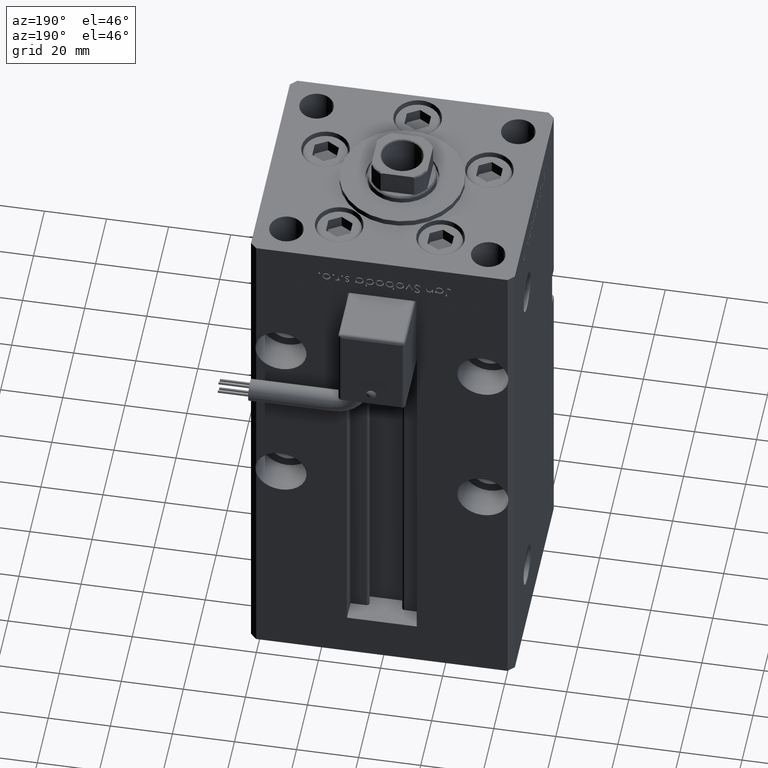
[diagram: clean part render]
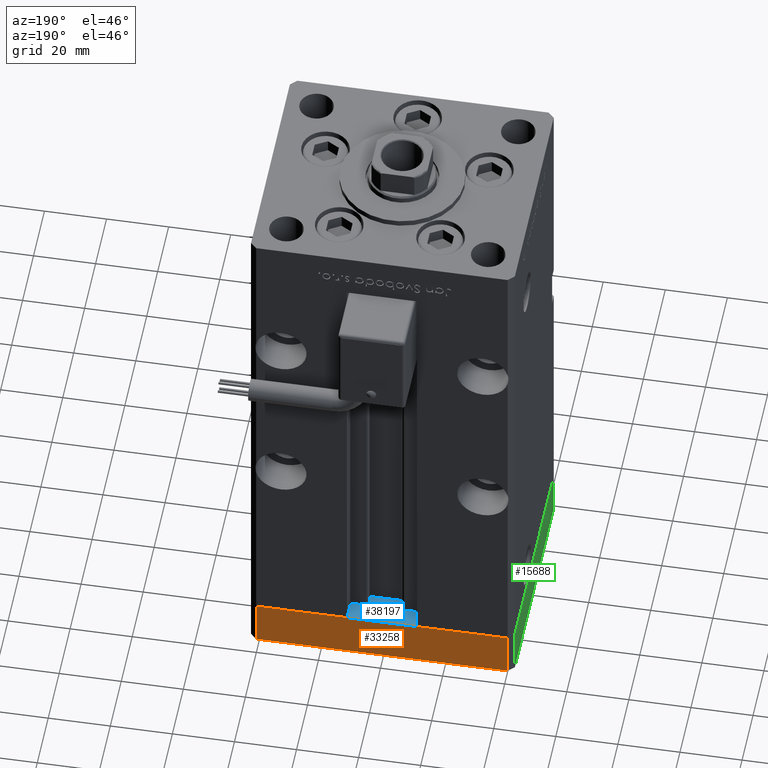
[diagram: same view with three faces highlighted in distinct colors, each labeled with its STEP entity id]
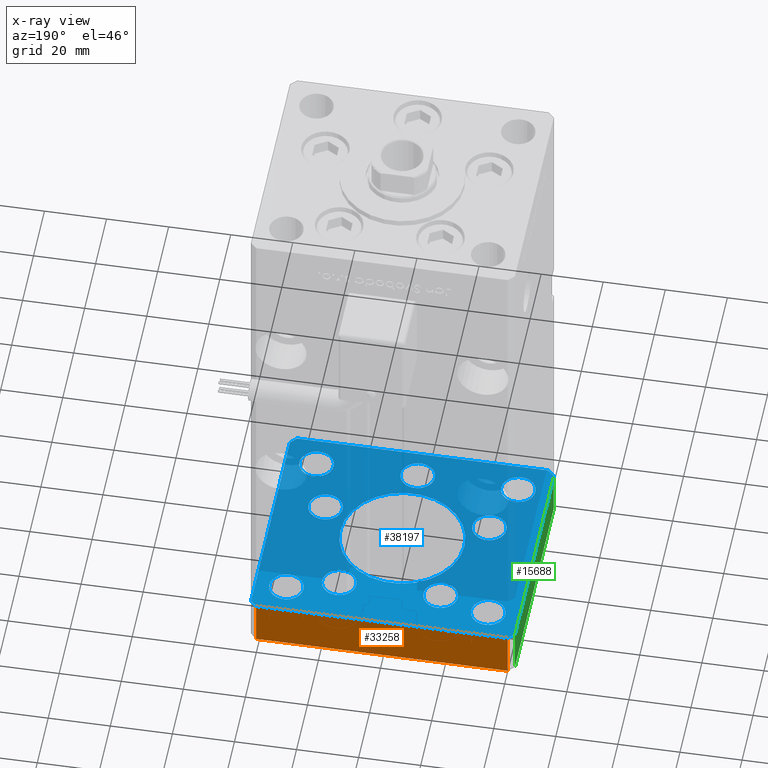
[diagram: x-ray of the same camera — body ghosted, the three highlighted faces saturated]
A machine part, auxiliary view with three faces highlighted in distinct colors.
The next image is the same camera in x-ray (body ghosted, the three faces saturated) — at least one of them is partly hidden behind the body in this view.
Their STEP definitions:

[orange] entity #33258 — the highlighted planar face has unit normal (-0, 1, 0).
#1394 = ORIENTED_EDGE ( 'NONE', *, *, #22505, .F. ) ;
#1836 = VERTEX_POINT ( 'NONE', #6038 ) ;
#3557 = DIRECTION ( 'NONE',  ( -1.000000000000000000, -3.426614273534436165E-16, 0.000000000000000000 ) ) ;
#6038 = CARTESIAN_POINT ( 'NONE',  ( 40.49999999999991473, 37.50000000000000711, 0.000000000000000000 ) ) ;
#6355 = CARTESIAN_POINT ( 'NONE',  ( 40.49999999999991473, 37.50000000000000711, -15.00000000000000000 ) ) ;
#6370 = DIRECTION ( 'NONE',  ( 0.000000000000000000, 0.000000000000000000, 1.000000000000000000 ) ) ;
#6649 = AXIS2_PLACEMENT_3D ( 'NONE', #25977, #29947, #30217 ) ;
#9524 = PLANE ( 'NONE',  #6649 ) ;
#12598 = VECTOR ( 'NONE', #51268, 1000.000000000000000 ) ;
#16197 = EDGE_CURVE ( 'NONE', #1836, #30914, #30238, .T. ) ;
#18028 = CARTESIAN_POINT ( 'NONE',  ( -40.50000000000000711, 37.49999999999997868, 0.000000000000000000 ) ) ;
#20082 = EDGE_CURVE ( 'NONE', #47182, #28397, #21156, .T. ) ;
#21156 = LINE ( 'NONE', #42973, #48891 ) ;
#22505 = EDGE_CURVE ( 'NONE', #47182, #1836, #34317, .T. ) ;
#23784 = VECTOR ( 'NONE', #6370, 1000.000000000000000 ) ;
#25454 = CARTESIAN_POINT ( 'NONE',  ( 40.49999999999991473, 37.50000000000000711, 0.000000000000000000 ) ) ;
#25977 = CARTESIAN_POINT ( 'NONE',  ( 40.49999999999991473, 37.50000000000000711, -15.00000000000000000 ) ) ;
#26265 = FACE_OUTER_BOUND ( 'NONE', #36475, .T. ) ;
#27651 = LINE ( 'NONE', #50059, #23784 ) ;
#27879 = EDGE_CURVE ( 'NONE', #28397, #30914, #27651, .T. ) ;
#28397 = VERTEX_POINT ( 'NONE', #30851 ) ;
#29947 = DIRECTION ( 'NONE',  ( -3.426614273534436165E-16, 1.000000000000000000, 0.000000000000000000 ) ) ;
#30217 = DIRECTION ( 'NONE',  ( -1.000000000000000000, -3.426614273534436165E-16, 0.000000000000000000 ) ) ;
#30238 = LINE ( 'NONE', #25454, #12598 ) ;
#30851 = CARTESIAN_POINT ( 'NONE',  ( -40.50000000000000711, 37.49999999999997868, -15.00000000000000000 ) ) ;
#30914 = VERTEX_POINT ( 'NONE', #18028 ) ;
#31902 = ORIENTED_EDGE ( 'NONE', *, *, #16197, .F. ) ;
#33210 = DIRECTION ( 'NONE',  ( 0.000000000000000000, 0.000000000000000000, 1.000000000000000000 ) ) ;
#33258 = ADVANCED_FACE ( 'NONE', ( #26265 ), #9524, .T. ) ;
#34317 = LINE ( 'NONE', #42003, #55312 ) ;
#36475 = EDGE_LOOP ( 'NONE', ( #31902, #1394, #41601, #41045 ) ) ;
#41045 = ORIENTED_EDGE ( 'NONE', *, *, #27879, .T. ) ;
#41601 = ORIENTED_EDGE ( 'NONE', *, *, #20082, .T. ) ;
#42003 = CARTESIAN_POINT ( 'NONE',  ( 40.49999999999991473, 37.50000000000000711, -15.00000000000000000 ) ) ;
#42973 = CARTESIAN_POINT ( 'NONE',  ( 40.49999999999991473, 37.50000000000000711, -15.00000000000000000 ) ) ;
#47182 = VERTEX_POINT ( 'NONE', #6355 ) ;
#48891 = VECTOR ( 'NONE', #3557, 1000.000000000000000 ) ;
#50059 = CARTESIAN_POINT ( 'NONE',  ( -40.50000000000000711, 37.49999999999997868, -15.00000000000000000 ) ) ;
#51268 = DIRECTION ( 'NONE',  ( -1.000000000000000000, -3.426614273534436165E-16, 0.000000000000000000 ) ) ;
#55312 = VECTOR ( 'NONE', #33210, 1000.000000000000000 ) ;

[blue] entity #38197 — the highlighted planar face has unit normal (0, 0, -1).
#60 = AXIS2_PLACEMENT_3D ( 'NONE', #4339, #37583, #54910 ) ;
#112 = DIRECTION ( 'NONE',  ( -1.000000000000000000, 0.000000000000000000, 0.000000000000000000 ) ) ;
#149 = ORIENTED_EDGE ( 'NONE', *, *, #9148, .F. ) ;
#164 = EDGE_CURVE ( 'NONE', #27696, #49004, #3109, .T. ) ;
#196 = ORIENTED_EDGE ( 'NONE', *, *, #41589, .F. ) ;
#882 = VERTEX_POINT ( 'NONE', #9539 ) ;
#1050 = VERTEX_POINT ( 'NONE', #18762 ) ;
#1256 = DIRECTION ( 'NONE',  ( 0.000000000000000000, -0.000000000000000000, -1.000000000000000000 ) ) ;
#1540 = CARTESIAN_POINT ( 'NONE',  ( -42.50000000000000711, 35.49999999999997158, -15.00000000000000000 ) ) ;
#1642 = CARTESIAN_POINT ( 'NONE',  ( 26.39865316429776954, -9.333333333333330373, -15.00000000000000000 ) ) ;
#2721 = EDGE_LOOP ( 'NONE', ( #37969, #49754 ) ) ;
#3109 = CIRCLE ( 'NONE', #46580, 5.500000000000000000 ) ;
#3557 = DIRECTION ( 'NONE',  ( -1.000000000000000000, -3.426614273534436165E-16, 0.000000000000000000 ) ) ;
#3689 = ORIENTED_EDGE ( 'NONE', *, *, #43684, .F. ) ;
#4047 = DIRECTION ( 'NONE',  ( -1.172770800660376741E-15, 1.000000000000000000, 0.000000000000000000 ) ) ;
#4109 = CARTESIAN_POINT ( 'NONE',  ( -40.49999999999999289, -37.50000000000002132, -15.00000000000000000 ) ) ;
#4229 = VERTEX_POINT ( 'NONE', #6416 ) ;
#4339 = CARTESIAN_POINT ( 'NONE',  ( -32.50000000000000000, 27.50000000000000355, -15.00000000000000000 ) ) ;
#4548 = VECTOR ( 'NONE', #4047, 1000.000000000000000 ) ;
#4674 = ORIENTED_EDGE ( 'NONE', *, *, #35755, .F. ) ;
#4746 = EDGE_CURVE ( 'NONE', #54460, #32583, #27868, .T. ) ;
#5011 = VERTEX_POINT ( 'NONE', #27803 ) ;
#5125 = CARTESIAN_POINT ( 'NONE',  ( 3.429011037612589276E-15, -28.00000000000000000, -15.00000000000000000 ) ) ;
#5238 = DIRECTION ( 'NONE',  ( 1.000000000000000000, 0.000000000000000000, 0.000000000000000000 ) ) ;
#5378 = AXIS2_PLACEMENT_3D ( 'NONE', #20905, #55801, #33943 ) ;
#5452 = VERTEX_POINT ( 'NONE', #43563 ) ;
#5601 = EDGE_LOOP ( 'NONE', ( #11521, #16815 ) ) ;
#5673 = VECTOR ( 'NONE', #17049, 1000.000000000000000 ) ;
#6230 = AXIS2_PLACEMENT_3D ( 'NONE', #47128, #50552, #8257 ) ;
#6335 = AXIS2_PLACEMENT_3D ( 'NONE', #16336, #21398, #33890 ) ;
#6355 = CARTESIAN_POINT ( 'NONE',  ( 40.49999999999991473, 37.50000000000000711, -15.00000000000000000 ) ) ;
#6407 = CIRCLE ( 'NONE', #60, 5.499999999999998224 ) ;
#6416 = CARTESIAN_POINT ( 'NONE',  ( -27.00000000000000355, -27.49999999999999645, -15.00000000000000000 ) ) ;
#6747 = EDGE_CURVE ( 'NONE', #4229, #49756, #41263, .T. ) ;
#6846 = AXIS2_PLACEMENT_3D ( 'NONE', #29900, #17429, #25657 ) ;
#7209 = CIRCLE ( 'NONE', #5378, 5.499999999999998224 ) ;
#7225 = FACE_BOUND ( 'NONE', #51585, .T. ) ;
#7260 = DIRECTION ( 'NONE',  ( 9.773090005503140331E-17, -1.000000000000000000, 0.000000000000000000 ) ) ;
#7303 = AXIS2_PLACEMENT_3D ( 'NONE', #46949, #29916, #43226 ) ;
#7602 = ORIENTED_EDGE ( 'NONE', *, *, #34452, .F. ) ;
#7774 = DIRECTION ( 'NONE',  ( 1.000000000000000000, 0.000000000000000000, 0.000000000000000000 ) ) ;
#7805 = CIRCLE ( 'NONE', #28667, 20.00000000000000000 ) ;
#7967 = ORIENTED_EDGE ( 'NONE', *, *, #20082, .F. ) ;
#8050 = CARTESIAN_POINT ( 'NONE',  ( 0.000000000000000000, 0.000000000000000000, -15.00000000000000000 ) ) ;
#8257 = DIRECTION ( 'NONE',  ( 1.000000000000000000, 0.000000000000000000, 0.000000000000000000 ) ) ;
#8302 = ORIENTED_EDGE ( 'NONE', *, *, #6747, .F. ) ;
#8321 = CARTESIAN_POINT ( 'NONE',  ( 42.50000000000000711, -35.50000000000000000, -15.00000000000000000 ) ) ;
#8376 = AXIS2_PLACEMENT_3D ( 'NONE', #17742, #1256, #14054 ) ;
#8430 = ORIENTED_EDGE ( 'NONE', *, *, #53659, .F. ) ;
#8530 = CIRCLE ( 'NONE', #24874, 5.500000000000001776 ) ;
#8733 = AXIS2_PLACEMENT_3D ( 'NONE', #29462, #33997, #16715 ) ;
#8987 = CARTESIAN_POINT ( 'NONE',  ( 38.00000000000000000, -27.49999999999999645, -15.00000000000000000 ) ) ;
#9141 = ORIENTED_EDGE ( 'NONE', *, *, #27692, .F. ) ;
#9148 = EDGE_CURVE ( 'NONE', #5011, #1050, #7805, .T. ) ;
#9539 = CARTESIAN_POINT ( 'NONE',  ( -21.82291334290543361, 22.74999999999999645, -15.00000000000000000 ) ) ;
#9689 = DIRECTION ( 'NONE',  ( 1.000000000000000000, 0.000000000000000000, 0.000000000000000000 ) ) ;
#10211 = ORIENTED_EDGE ( 'NONE', *, *, #164, .F. ) ;
#10338 = VERTEX_POINT ( 'NONE', #52485 ) ;
#10567 = DIRECTION ( 'NONE',  ( 1.000000000000000000, 0.000000000000000000, 0.000000000000000000 ) ) ;
#10780 = EDGE_CURVE ( 'NONE', #38285, #54883, #52289, .T. ) ;
#10802 = CARTESIAN_POINT ( 'NONE',  ( 3.429011037612589276E-15, -28.00000000000000000, -15.00000000000000000 ) ) ;
#11407 = DIRECTION ( 'NONE',  ( 0.000000000000000000, -0.000000000000000000, -1.000000000000000000 ) ) ;
#11521 = ORIENTED_EDGE ( 'NONE', *, *, #50384, .F. ) ;
#12046 = FACE_BOUND ( 'NONE', #5601, .T. ) ;
#12048 = ORIENTED_EDGE ( 'NONE', *, *, #12336, .F. ) ;
#12336 = EDGE_CURVE ( 'NONE', #44099, #47182, #38458, .T. ) ;
#12638 = DIRECTION ( 'NONE',  ( -0.000000000000000000, -0.000000000000000000, -1.000000000000000000 ) ) ;
#12687 = CARTESIAN_POINT ( 'NONE',  ( -42.50000000000000000, -35.50000000000000711, -15.00000000000000000 ) ) ;
#12827 = EDGE_CURVE ( 'NONE', #47526, #882, #41459, .T. ) ;
#13007 = CIRCLE ( 'NONE', #34715, 5.499999999999998224 ) ;
#13646 = EDGE_CURVE ( 'NONE', #882, #47526, #17053, .T. ) ;
#14054 = DIRECTION ( 'NONE',  ( 1.000000000000000000, 0.000000000000000000, 0.000000000000000000 ) ) ;
#14121 = CARTESIAN_POINT ( 'NONE',  ( -10.82291334290543183, 22.74999999999999645, -15.00000000000000000 ) ) ;
#14662 = DIRECTION ( 'NONE',  ( 1.000000000000000000, 0.000000000000000000, 0.000000000000000000 ) ) ;
#14819 = EDGE_CURVE ( 'NONE', #31199, #26582, #15284, .T. ) ;
#14941 = EDGE_LOOP ( 'NONE', ( #8302, #28684 ) ) ;
#15110 = DIRECTION ( 'NONE',  ( 1.000000000000000000, 0.000000000000000000, 0.000000000000000000 ) ) ;
#15201 = AXIS2_PLACEMENT_3D ( 'NONE', #53534, #52401, #14662 ) ;
#15284 = CIRCLE ( 'NONE', #6230, 5.499999999999998224 ) ;
#15661 = CIRCLE ( 'NONE', #8376, 20.00000000000000000 ) ;
#15997 = ORIENTED_EDGE ( 'NONE', *, *, #33654, .T. ) ;
#16336 = CARTESIAN_POINT ( 'NONE',  ( -32.50000000000000000, 27.50000000000000355, -15.00000000000000000 ) ) ;
#16715 = DIRECTION ( 'NONE',  ( 1.000000000000000000, 0.000000000000000000, 0.000000000000000000 ) ) ;
#16815 = ORIENTED_EDGE ( 'NONE', *, *, #52439, .F. ) ;
#17049 = DIRECTION ( 'NONE',  ( 1.000000000000000000, 1.713307136767217096E-16, 0.000000000000000000 ) ) ;
#17053 = CIRCLE ( 'NONE', #46928, 5.500000000000000000 ) ;
#17307 = ORIENTED_EDGE ( 'NONE', *, *, #4746, .F. ) ;
#17429 = DIRECTION ( 'NONE',  ( -0.000000000000000000, -0.000000000000000000, -1.000000000000000000 ) ) ;
#17616 = VECTOR ( 'NONE', #24895, 1000.000000000000000 ) ;
#17742 = CARTESIAN_POINT ( 'NONE',  ( 0.000000000000000000, 0.000000000000000000, -15.00000000000000000 ) ) ;
#17763 = ORIENTED_EDGE ( 'NONE', *, *, #32949, .F. ) ;
#18235 = CARTESIAN_POINT ( 'NONE',  ( -40.49999999999999289, -37.50000000000002132, -15.00000000000000000 ) ) ;
#18462 = ORIENTED_EDGE ( 'NONE', *, *, #35550, .F. ) ;
#18762 = CARTESIAN_POINT ( 'NONE',  ( -20.00000000000000000, 2.449293598294706513E-15, -15.00000000000000000 ) ) ;
#19934 = CARTESIAN_POINT ( 'NONE',  ( 20.89865316429777309, -9.333333333333330373, -15.00000000000000000 ) ) ;
#20082 = EDGE_CURVE ( 'NONE', #47182, #28397, #21156, .T. ) ;
#20310 = VERTEX_POINT ( 'NONE', #1540 ) ;
#20556 = FACE_BOUND ( 'NONE', #33967, .T. ) ;
#20702 = DIRECTION ( 'NONE',  ( 0.000000000000000000, -0.000000000000000000, -1.000000000000000000 ) ) ;
#20759 = CARTESIAN_POINT ( 'NONE',  ( -40.50000000000000711, 37.49999999999997868, -15.00000000000000000 ) ) ;
#20830 = FACE_BOUND ( 'NONE', #40561, .T. ) ;
#20905 = CARTESIAN_POINT ( 'NONE',  ( 32.50000000000000000, -27.49999999999999645, -15.00000000000000000 ) ) ;
#20967 = EDGE_CURVE ( 'NONE', #42638, #29681, #28957, .T. ) ;
#21100 = AXIS2_PLACEMENT_3D ( 'NONE', #54821, #11407, #15110 ) ;
#21156 = LINE ( 'NONE', #42973, #48891 ) ;
#21398 = DIRECTION ( 'NONE',  ( 0.000000000000000000, 0.000000000000000000, 1.000000000000000000 ) ) ;
#21524 = CARTESIAN_POINT ( 'NONE',  ( 16.32291334290542295, 22.75000000000000000, -15.00000000000000000 ) ) ;
#21844 = LINE ( 'NONE', #18235, #5673 ) ;
#21848 = EDGE_CURVE ( 'NONE', #49756, #4229, #48962, .T. ) ;
#22338 = DIRECTION ( 'NONE',  ( 1.000000000000000000, 0.000000000000000000, 0.000000000000000000 ) ) ;
#22556 = ORIENTED_EDGE ( 'NONE', *, *, #10780, .T. ) ;
#22592 = CIRCLE ( 'NONE', #32549, 5.500000000000000000 ) ;
#22717 = DIRECTION ( 'NONE',  ( 0.000000000000000000, -0.000000000000000000, -1.000000000000000000 ) ) ;
#22910 = ORIENTED_EDGE ( 'NONE', *, *, #27941, .F. ) ;
#23041 = VECTOR ( 'NONE', #45731, 1000.000000000000114 ) ;
#23174 = DIRECTION ( 'NONE',  ( 0.000000000000000000, -0.000000000000000000, -1.000000000000000000 ) ) ;
#23442 = CARTESIAN_POINT ( 'NONE',  ( 27.00000000000000355, -27.49999999999999645, -15.00000000000000000 ) ) ;
#23452 = CARTESIAN_POINT ( 'NONE',  ( -16.32291334290543006, 22.74999999999999645, -15.00000000000000000 ) ) ;
#23627 = EDGE_CURVE ( 'NONE', #29681, #42638, #6407, .T. ) ;
#23838 = CARTESIAN_POINT ( 'NONE',  ( -38.00000000000000000, -27.49999999999999645, -15.00000000000000000 ) ) ;
#24603 = VERTEX_POINT ( 'NONE', #26783 ) ;
#24874 = AXIS2_PLACEMENT_3D ( 'NONE', #21524, #20702, #47341 ) ;
#24895 = DIRECTION ( 'NONE',  ( 0.7071067811865463515, -0.7071067811865487940, 0.000000000000000000 ) ) ;
#25300 = DIRECTION ( 'NONE',  ( -0.7071067811865463515, -0.7071067811865487940, 0.000000000000000000 ) ) ;
#25657 = DIRECTION ( 'NONE',  ( -1.000000000000000000, 0.000000000000000000, 0.000000000000000000 ) ) ;
#25771 = EDGE_LOOP ( 'NONE', ( #41575, #49224 ) ) ;
#26522 = DIRECTION ( 'NONE',  ( 0.000000000000000000, 0.000000000000000000, 1.000000000000000000 ) ) ;
#26582 = VERTEX_POINT ( 'NONE', #54027 ) ;
#26783 = CARTESIAN_POINT ( 'NONE',  ( 10.82291334290542473, 22.75000000000000000, -15.00000000000000000 ) ) ;
#27211 = AXIS2_PLACEMENT_3D ( 'NONE', #1642, #45045, #53594 ) ;
#27692 = EDGE_CURVE ( 'NONE', #1050, #5011, #15661, .T. ) ;
#27696 = VERTEX_POINT ( 'NONE', #35307 ) ;
#27770 = EDGE_LOOP ( 'NONE', ( #22556, #15997 ) ) ;
#27803 = CARTESIAN_POINT ( 'NONE',  ( 20.00000000000000000, 0.000000000000000000, -15.00000000000000000 ) ) ;
#27868 = LINE ( 'NONE', #32674, #23041 ) ;
#27941 = EDGE_CURVE ( 'NONE', #48098, #54460, #21844, .T. ) ;
#28045 = EDGE_LOOP ( 'NONE', ( #55028, #10211 ) ) ;
#28397 = VERTEX_POINT ( 'NONE', #30851 ) ;
#28540 = LINE ( 'NONE', #46118, #51474 ) ;
#28667 = AXIS2_PLACEMENT_3D ( 'NONE', #39090, #34558, #43343 ) ;
#28684 = ORIENTED_EDGE ( 'NONE', *, *, #21848, .F. ) ;
#28957 = CIRCLE ( 'NONE', #6335, 5.499999999999998224 ) ;
#29462 = CARTESIAN_POINT ( 'NONE',  ( 16.32291334290542295, 22.75000000000000000, -15.00000000000000000 ) ) ;
#29681 = VERTEX_POINT ( 'NONE', #46186 ) ;
#29875 = AXIS2_PLACEMENT_3D ( 'NONE', #34175, #12638, #112 ) ;
#29900 = CARTESIAN_POINT ( 'NONE',  ( -32.50000000000000000, -27.49999999999999645, -15.00000000000000000 ) ) ;
#29916 = DIRECTION ( 'NONE',  ( -0.000000000000000000, -0.000000000000000000, -1.000000000000000000 ) ) ;
#30137 = CARTESIAN_POINT ( 'NONE',  ( -31.89865316429776954, -9.333333333333337478, -15.00000000000000000 ) ) ;
#30594 = VECTOR ( 'NONE', #51805, 1000.000000000000114 ) ;
#30851 = CARTESIAN_POINT ( 'NONE',  ( -40.50000000000000711, 37.49999999999997868, -15.00000000000000000 ) ) ;
#30939 = DIRECTION ( 'NONE',  ( 1.000000000000000000, 0.000000000000000000, 0.000000000000000000 ) ) ;
#31199 = VERTEX_POINT ( 'NONE', #30137 ) ;
#32549 = AXIS2_PLACEMENT_3D ( 'NONE', #10802, #49673, #9689 ) ;
#32583 = VERTEX_POINT ( 'NONE', #53215 ) ;
#32674 = CARTESIAN_POINT ( 'NONE',  ( 40.50000000000000000, -37.50000000000000711, -15.00000000000000000 ) ) ;
#32949 = EDGE_CURVE ( 'NONE', #48663, #10338, #45556, .T. ) ;
#33192 = CIRCLE ( 'NONE', #8733, 5.500000000000001776 ) ;
#33305 = FACE_BOUND ( 'NONE', #28045, .T. ) ;
#33654 = EDGE_CURVE ( 'NONE', #54883, #38285, #13007, .T. ) ;
#33867 = CARTESIAN_POINT ( 'NONE',  ( 40.50000000000000000, -37.50000000000000711, -15.00000000000000000 ) ) ;
#33890 = DIRECTION ( 'NONE',  ( 1.000000000000000000, 0.000000000000000000, 0.000000000000000000 ) ) ;
#33943 = DIRECTION ( 'NONE',  ( -1.000000000000000000, 0.000000000000000000, 0.000000000000000000 ) ) ;
#33967 = EDGE_LOOP ( 'NONE', ( #41518, #17763 ) ) ;
#33997 = DIRECTION ( 'NONE',  ( 0.000000000000000000, -0.000000000000000000, -1.000000000000000000 ) ) ;
#34175 = CARTESIAN_POINT ( 'NONE',  ( 32.50000000000000000, -27.49999999999999645, -15.00000000000000000 ) ) ;
#34452 = EDGE_CURVE ( 'NONE', #28397, #20310, #51671, .T. ) ;
#34558 = DIRECTION ( 'NONE',  ( 0.000000000000000000, -0.000000000000000000, -1.000000000000000000 ) ) ;
#34715 = AXIS2_PLACEMENT_3D ( 'NONE', #35533, #53713, #10567 ) ;
#35248 = LINE ( 'NONE', #8321, #4548 ) ;
#35307 = CARTESIAN_POINT ( 'NONE',  ( -5.499999999999996447, -28.00000000000000000, -15.00000000000000000 ) ) ;
#35533 = CARTESIAN_POINT ( 'NONE',  ( 32.50000000000000000, 27.49999999999999645, -15.00000000000000000 ) ) ;
#35550 = EDGE_CURVE ( 'NONE', #24603, #53335, #8530, .T. ) ;
#35578 = CARTESIAN_POINT ( 'NONE',  ( 32.50000000000000000, 27.49999999999999645, -15.00000000000000000 ) ) ;
#35755 = EDGE_CURVE ( 'NONE', #5452, #48098, #55537, .T. ) ;
#36769 = ORIENTED_EDGE ( 'NONE', *, *, #14819, .F. ) ;
#37571 = FACE_BOUND ( 'NONE', #25771, .T. ) ;
#37583 = DIRECTION ( 'NONE',  ( 0.000000000000000000, 0.000000000000000000, 1.000000000000000000 ) ) ;
#37838 = FACE_OUTER_BOUND ( 'NONE', #46824, .T. ) ;
#37969 = ORIENTED_EDGE ( 'NONE', *, *, #23627, .T. ) ;
#38197 = ADVANCED_FACE ( 'NONE', ( #7225, #55172, #33305, #20556, #20830, #37571, #46641, #46082, #37838, #12046, #38397 ), #42653, .F. ) ;
#38285 = VERTEX_POINT ( 'NONE', #48318 ) ;
#38397 = FACE_BOUND ( 'NONE', #14941, .T. ) ;
#38458 = LINE ( 'NONE', #51252, #30594 ) ;
#38516 = CARTESIAN_POINT ( 'NONE',  ( 21.82291334290542650, 22.75000000000000000, -15.00000000000000000 ) ) ;
#39090 = CARTESIAN_POINT ( 'NONE',  ( 0.000000000000000000, 0.000000000000000000, -15.00000000000000000 ) ) ;
#39732 = CARTESIAN_POINT ( 'NONE',  ( 27.00000000000000355, 27.49999999999999645, -15.00000000000000000 ) ) ;
#40561 = EDGE_LOOP ( 'NONE', ( #196, #18462 ) ) ;
#41263 = CIRCLE ( 'NONE', #6846, 5.499999999999998224 ) ;
#41459 = CIRCLE ( 'NONE', #49612, 5.500000000000000000 ) ;
#41518 = ORIENTED_EDGE ( 'NONE', *, *, #56081, .F. ) ;
#41575 = ORIENTED_EDGE ( 'NONE', *, *, #12827, .F. ) ;
#41589 = EDGE_CURVE ( 'NONE', #53335, #24603, #33192, .T. ) ;
#42024 = VECTOR ( 'NONE', #25300, 1000.000000000000000 ) ;
#42144 = AXIS2_PLACEMENT_3D ( 'NONE', #8050, #46360, #7774 ) ;
#42638 = VERTEX_POINT ( 'NONE', #55811 ) ;
#42653 = PLANE ( 'NONE',  #42144 ) ;
#42973 = CARTESIAN_POINT ( 'NONE',  ( 40.49999999999991473, 37.50000000000000711, -15.00000000000000000 ) ) ;
#43058 = CARTESIAN_POINT ( 'NONE',  ( 5.500000000000003553, -28.00000000000000000, -15.00000000000000000 ) ) ;
#43226 = DIRECTION ( 'NONE',  ( -1.000000000000000000, 0.000000000000000000, 0.000000000000000000 ) ) ;
#43343 = DIRECTION ( 'NONE',  ( 1.000000000000000000, 0.000000000000000000, 0.000000000000000000 ) ) ;
#43563 = CARTESIAN_POINT ( 'NONE',  ( -42.50000000000000000, -35.50000000000000711, -15.00000000000000000 ) ) ;
#43684 = EDGE_CURVE ( 'NONE', #26582, #31199, #45956, .T. ) ;
#43964 = ORIENTED_EDGE ( 'NONE', *, *, #47088, .F. ) ;
#44099 = VERTEX_POINT ( 'NONE', #55132 ) ;
#44729 = CARTESIAN_POINT ( 'NONE',  ( -16.32291334290543006, 22.74999999999999645, -15.00000000000000000 ) ) ;
#45045 = DIRECTION ( 'NONE',  ( 0.000000000000000000, -0.000000000000000000, -1.000000000000000000 ) ) ;
#45556 = CIRCLE ( 'NONE', #21100, 5.499999999999998224 ) ;
#45571 = DIRECTION ( 'NONE',  ( 1.000000000000000000, 0.000000000000000000, 0.000000000000000000 ) ) ;
#45731 = DIRECTION ( 'NONE',  ( 0.7071067811865474617, 0.7071067811865474617, 0.000000000000000000 ) ) ;
#45956 = CIRCLE ( 'NONE', #15201, 5.499999999999998224 ) ;
#46082 = FACE_BOUND ( 'NONE', #2721, .T. ) ;
#46118 = CARTESIAN_POINT ( 'NONE',  ( -42.50000000000000711, 35.49999999999997158, -15.00000000000000000 ) ) ;
#46186 = CARTESIAN_POINT ( 'NONE',  ( -27.00000000000000355, 27.50000000000000355, -15.00000000000000000 ) ) ;
#46200 = CIRCLE ( 'NONE', #27211, 5.499999999999998224 ) ;
#46360 = DIRECTION ( 'NONE',  ( -0.000000000000000000, 0.000000000000000000, 1.000000000000000000 ) ) ;
#46580 = AXIS2_PLACEMENT_3D ( 'NONE', #5125, #22717, #30939 ) ;
#46641 = FACE_BOUND ( 'NONE', #27770, .T. ) ;
#46824 = EDGE_LOOP ( 'NONE', ( #4674, #43964, #7602, #7967, #12048, #8430, #17307, #22910 ) ) ;
#46902 = VERTEX_POINT ( 'NONE', #23442 ) ;
#46928 = AXIS2_PLACEMENT_3D ( 'NONE', #44729, #53280, #22338 ) ;
#46949 = CARTESIAN_POINT ( 'NONE',  ( -32.50000000000000000, -27.49999999999999645, -15.00000000000000000 ) ) ;
#47088 = EDGE_CURVE ( 'NONE', #20310, #5452, #28540, .T. ) ;
#47128 = CARTESIAN_POINT ( 'NONE',  ( -26.39865316429776954, -9.333333333333337478, -15.00000000000000000 ) ) ;
#47182 = VERTEX_POINT ( 'NONE', #6355 ) ;
#47341 = DIRECTION ( 'NONE',  ( 1.000000000000000000, 0.000000000000000000, 0.000000000000000000 ) ) ;
#47526 = VERTEX_POINT ( 'NONE', #14121 ) ;
#48098 = VERTEX_POINT ( 'NONE', #4109 ) ;
#48318 = CARTESIAN_POINT ( 'NONE',  ( 38.00000000000000000, 27.49999999999999645, -15.00000000000000000 ) ) ;
#48663 = VERTEX_POINT ( 'NONE', #19934 ) ;
#48891 = VECTOR ( 'NONE', #3557, 1000.000000000000000 ) ;
#48962 = CIRCLE ( 'NONE', #7303, 5.499999999999998224 ) ;
#49004 = VERTEX_POINT ( 'NONE', #43058 ) ;
#49224 = ORIENTED_EDGE ( 'NONE', *, *, #13646, .F. ) ;
#49612 = AXIS2_PLACEMENT_3D ( 'NONE', #23452, #23174, #45571 ) ;
#49673 = DIRECTION ( 'NONE',  ( 0.000000000000000000, -0.000000000000000000, -1.000000000000000000 ) ) ;
#49754 = ORIENTED_EDGE ( 'NONE', *, *, #20967, .T. ) ;
#49756 = VERTEX_POINT ( 'NONE', #23838 ) ;
#50384 = EDGE_CURVE ( 'NONE', #51494, #46902, #7209, .T. ) ;
#50552 = DIRECTION ( 'NONE',  ( 0.000000000000000000, -0.000000000000000000, -1.000000000000000000 ) ) ;
#51131 = EDGE_CURVE ( 'NONE', #49004, #27696, #22592, .T. ) ;
#51252 = CARTESIAN_POINT ( 'NONE',  ( 42.49999999999992895, 35.50000000000000000, -15.00000000000000000 ) ) ;
#51474 = VECTOR ( 'NONE', #7260, 1000.000000000000000 ) ;
#51494 = VERTEX_POINT ( 'NONE', #8987 ) ;
#51585 = EDGE_LOOP ( 'NONE', ( #149, #9141 ) ) ;
#51671 = LINE ( 'NONE', #20759, #42024 ) ;
#51805 = DIRECTION ( 'NONE',  ( -0.7071067811865474617, 0.7071067811865474617, 0.000000000000000000 ) ) ;
#52247 = AXIS2_PLACEMENT_3D ( 'NONE', #35578, #26522, #5238 ) ;
#52289 = CIRCLE ( 'NONE', #52247, 5.499999999999998224 ) ;
#52401 = DIRECTION ( 'NONE',  ( 0.000000000000000000, -0.000000000000000000, -1.000000000000000000 ) ) ;
#52439 = EDGE_CURVE ( 'NONE', #46902, #51494, #54371, .T. ) ;
#52485 = CARTESIAN_POINT ( 'NONE',  ( 31.89865316429776954, -9.333333333333330373, -15.00000000000000000 ) ) ;
#53215 = CARTESIAN_POINT ( 'NONE',  ( 42.50000000000000711, -35.50000000000000000, -15.00000000000000000 ) ) ;
#53280 = DIRECTION ( 'NONE',  ( 0.000000000000000000, -0.000000000000000000, -1.000000000000000000 ) ) ;
#53335 = VERTEX_POINT ( 'NONE', #38516 ) ;
#53534 = CARTESIAN_POINT ( 'NONE',  ( -26.39865316429776954, -9.333333333333337478, -15.00000000000000000 ) ) ;
#53594 = DIRECTION ( 'NONE',  ( 1.000000000000000000, 0.000000000000000000, 0.000000000000000000 ) ) ;
#53659 = EDGE_CURVE ( 'NONE', #32583, #44099, #35248, .T. ) ;
#53713 = DIRECTION ( 'NONE',  ( 0.000000000000000000, 0.000000000000000000, 1.000000000000000000 ) ) ;
#54027 = CARTESIAN_POINT ( 'NONE',  ( -20.89865316429777309, -9.333333333333337478, -15.00000000000000000 ) ) ;
#54371 = CIRCLE ( 'NONE', #29875, 5.499999999999998224 ) ;
#54460 = VERTEX_POINT ( 'NONE', #33867 ) ;
#54821 = CARTESIAN_POINT ( 'NONE',  ( 26.39865316429776954, -9.333333333333330373, -15.00000000000000000 ) ) ;
#54883 = VERTEX_POINT ( 'NONE', #39732 ) ;
#54910 = DIRECTION ( 'NONE',  ( 1.000000000000000000, 0.000000000000000000, 0.000000000000000000 ) ) ;
#55028 = ORIENTED_EDGE ( 'NONE', *, *, #51131, .F. ) ;
#55132 = CARTESIAN_POINT ( 'NONE',  ( 42.49999999999992895, 35.50000000000000000, -15.00000000000000000 ) ) ;
#55156 = EDGE_LOOP ( 'NONE', ( #3689, #36769 ) ) ;
#55172 = FACE_BOUND ( 'NONE', #55156, .T. ) ;
#55537 = LINE ( 'NONE', #12687, #17616 ) ;
#55801 = DIRECTION ( 'NONE',  ( -0.000000000000000000, -0.000000000000000000, -1.000000000000000000 ) ) ;
#55811 = CARTESIAN_POINT ( 'NONE',  ( -38.00000000000000000, 27.50000000000000355, -15.00000000000000000 ) ) ;
#56081 = EDGE_CURVE ( 'NONE', #10338, #48663, #46200, .T. ) ;

[green] entity #15688 — the highlighted planar face has unit normal (-1, -0, 0).
#3851 = DIRECTION ( 'NONE',  ( 0.000000000000000000, 0.000000000000000000, 1.000000000000000000 ) ) ;
#4047 = DIRECTION ( 'NONE',  ( -1.172770800660376741E-15, 1.000000000000000000, 0.000000000000000000 ) ) ;
#4253 = EDGE_LOOP ( 'NONE', ( #47195, #5607, #12738, #43538 ) ) ;
#4397 = CARTESIAN_POINT ( 'NONE',  ( 42.49999999999992895, 35.50000000000000000, -15.00000000000000000 ) ) ;
#4548 = VECTOR ( 'NONE', #4047, 1000.000000000000000 ) ;
#5128 = CARTESIAN_POINT ( 'NONE',  ( 42.50000000000000711, -35.50000000000000000, -15.00000000000000000 ) ) ;
#5607 = ORIENTED_EDGE ( 'NONE', *, *, #21605, .F. ) ;
#8321 = CARTESIAN_POINT ( 'NONE',  ( 42.50000000000000711, -35.50000000000000000, -15.00000000000000000 ) ) ;
#8600 = EDGE_CURVE ( 'NONE', #44099, #41871, #21446, .T. ) ;
#12738 = ORIENTED_EDGE ( 'NONE', *, *, #53659, .T. ) ;
#15688 = ADVANCED_FACE ( 'NONE', ( #22436 ), #18474, .T. ) ;
#16583 = VERTEX_POINT ( 'NONE', #23293 ) ;
#17689 = LINE ( 'NONE', #51457, #33805 ) ;
#18363 = DIRECTION ( 'NONE',  ( 0.000000000000000000, 0.000000000000000000, 1.000000000000000000 ) ) ;
#18474 = PLANE ( 'NONE',  #37042 ) ;
#18756 = DIRECTION ( 'NONE',  ( 1.000000000000000000, 1.172770800660376741E-15, -0.000000000000000000 ) ) ;
#21446 = LINE ( 'NONE', #4397, #48593 ) ;
#21605 = EDGE_CURVE ( 'NONE', #32583, #16583, #23164, .T. ) ;
#21703 = VECTOR ( 'NONE', #18363, 1000.000000000000000 ) ;
#22436 = FACE_OUTER_BOUND ( 'NONE', #4253, .T. ) ;
#23164 = LINE ( 'NONE', #44430, #21703 ) ;
#23293 = CARTESIAN_POINT ( 'NONE',  ( 42.50000000000000711, -35.50000000000000000, 0.000000000000000000 ) ) ;
#32583 = VERTEX_POINT ( 'NONE', #53215 ) ;
#33594 = EDGE_CURVE ( 'NONE', #16583, #41871, #17689, .T. ) ;
#33805 = VECTOR ( 'NONE', #35253, 1000.000000000000000 ) ;
#35248 = LINE ( 'NONE', #8321, #4548 ) ;
#35253 = DIRECTION ( 'NONE',  ( -1.172770800660376741E-15, 1.000000000000000000, 0.000000000000000000 ) ) ;
#37042 = AXIS2_PLACEMENT_3D ( 'NONE', #5128, #18756, #49373 ) ;
#38109 = CARTESIAN_POINT ( 'NONE',  ( 42.49999999999992895, 35.50000000000000000, 0.000000000000000000 ) ) ;
#41871 = VERTEX_POINT ( 'NONE', #38109 ) ;
#43538 = ORIENTED_EDGE ( 'NONE', *, *, #8600, .T. ) ;
#44099 = VERTEX_POINT ( 'NONE', #55132 ) ;
#44430 = CARTESIAN_POINT ( 'NONE',  ( 42.50000000000000711, -35.50000000000000000, -15.00000000000000000 ) ) ;
#47195 = ORIENTED_EDGE ( 'NONE', *, *, #33594, .F. ) ;
#48593 = VECTOR ( 'NONE', #3851, 1000.000000000000000 ) ;
#49373 = DIRECTION ( 'NONE',  ( -1.172770800660376741E-15, 1.000000000000000000, 0.000000000000000000 ) ) ;
#51457 = CARTESIAN_POINT ( 'NONE',  ( 42.50000000000000711, -35.50000000000000000, 0.000000000000000000 ) ) ;
#53215 = CARTESIAN_POINT ( 'NONE',  ( 42.50000000000000711, -35.50000000000000000, -15.00000000000000000 ) ) ;
#53659 = EDGE_CURVE ( 'NONE', #32583, #44099, #35248, .T. ) ;
#55132 = CARTESIAN_POINT ( 'NONE',  ( 42.49999999999992895, 35.50000000000000000, -15.00000000000000000 ) ) ;